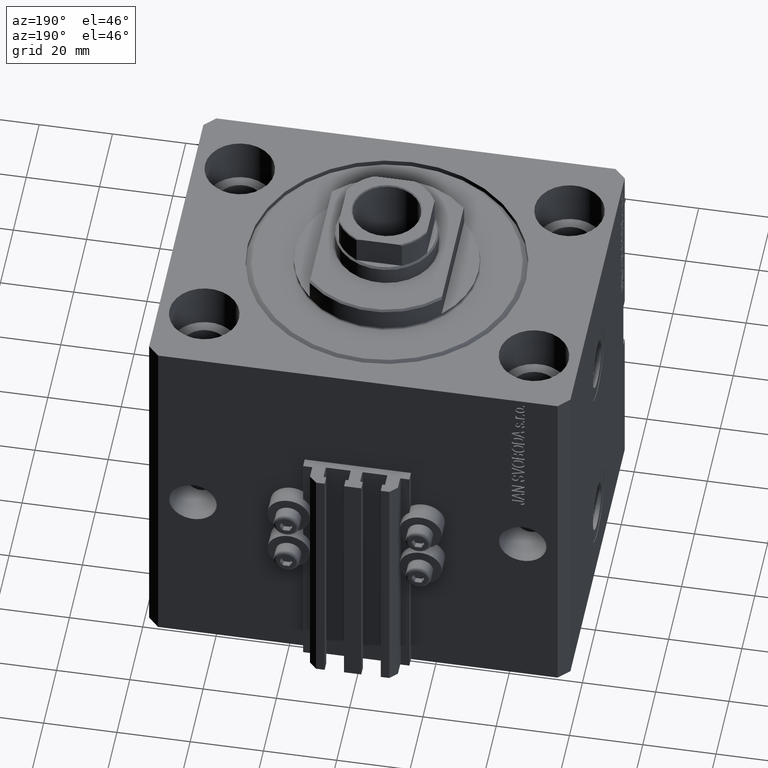
[diagram: clean part render]
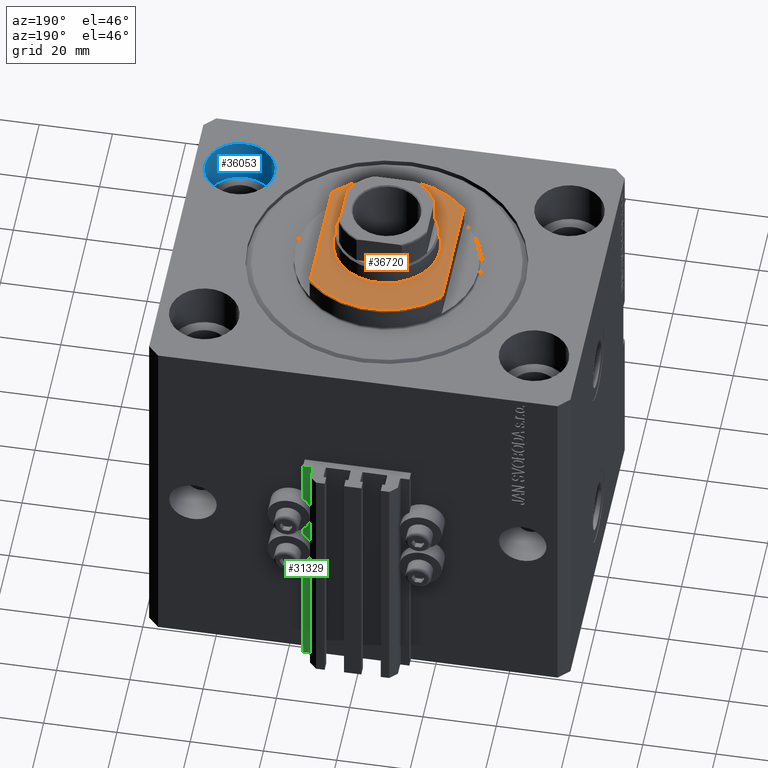
[diagram: same view with three faces highlighted in distinct colors, each labeled with its STEP entity id]
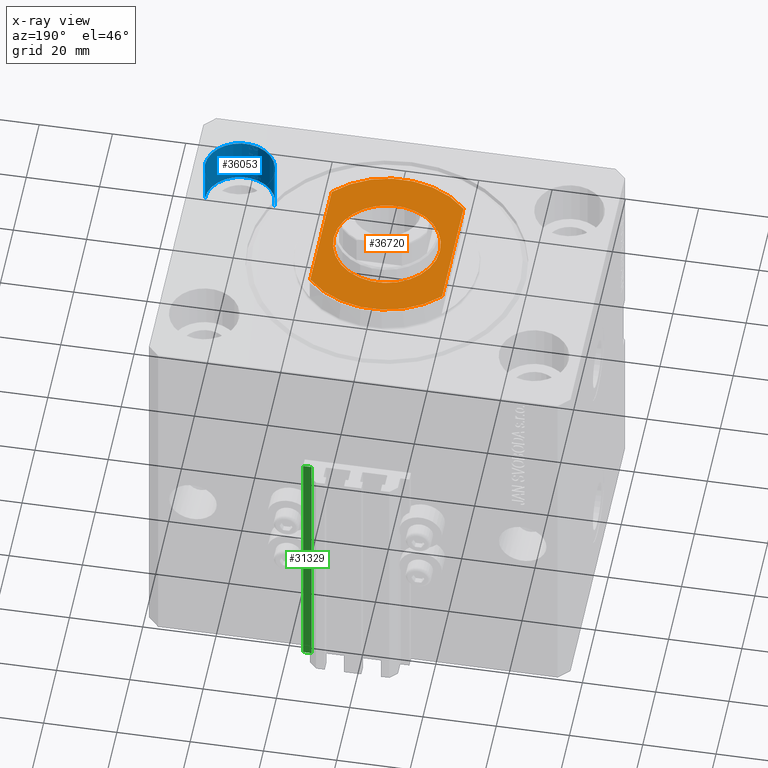
[diagram: x-ray of the same camera — body ghosted, the three highlighted faces saturated]
A machine part, auxiliary view with three faces highlighted in distinct colors.
The next image is the same camera in x-ray (body ghosted, the three faces saturated) — at least one of them is partly hidden behind the body in this view.
Their STEP definitions:

[orange] entity #36720 — the highlighted planar face has unit normal (0, 0, 1).
#127 = AXIS2_PLACEMENT_3D ( 'NONE', #952, #12392, #34790 ) ;
#952 = CARTESIAN_POINT ( 'NONE',  ( 0.000000000000000000, 0.000000000000000000, -7.000000000000000000 ) ) ;
#1234 = CARTESIAN_POINT ( 'NONE',  ( 18.00000000000000000, 16.62077013859462227, -7.000000000000000000 ) ) ;
#1754 = CARTESIAN_POINT ( 'NONE',  ( 0.000000000000000000, 0.000000000000000000, -7.000000000000000000 ) ) ;
#2191 = DIRECTION ( 'NONE',  ( 0.000000000000000000, 0.000000000000000000, -1.000000000000000000 ) ) ;
#2526 = EDGE_CURVE ( 'NONE', #11873, #15084, #2571, .T. ) ;
#2537 = CARTESIAN_POINT ( 'NONE',  ( 14.50000000000001243, 1.775737858763663987E-15, -7.000000000000000000 ) ) ;
#2571 = CIRCLE ( 'NONE', #7323, 14.50000000000001421 ) ;
#4262 = DIRECTION ( 'NONE',  ( -0.000000000000000000, -1.000000000000000000, -0.000000000000000000 ) ) ;
#6861 = VERTEX_POINT ( 'NONE', #23303 ) ;
#7021 = LINE ( 'NONE', #22189, #8323 ) ;
#7323 = AXIS2_PLACEMENT_3D ( 'NONE', #42429, #12587, #8369 ) ;
#8323 = VECTOR ( 'NONE', #4262, 1000.000000000000000 ) ;
#8369 = DIRECTION ( 'NONE',  ( -1.000000000000000000, 0.000000000000000000, 0.000000000000000000 ) ) ;
#9617 = CARTESIAN_POINT ( 'NONE',  ( 18.00000000000000000, -41.24318125460256113, -7.000000000000000000 ) ) ;
#11873 = VERTEX_POINT ( 'NONE', #33696 ) ;
#11934 = VERTEX_POINT ( 'NONE', #40650 ) ;
#12392 = DIRECTION ( 'NONE',  ( 0.000000000000000000, 0.000000000000000000, -1.000000000000000000 ) ) ;
#12587 = DIRECTION ( 'NONE',  ( -0.000000000000000000, -0.000000000000000000, 1.000000000000000000 ) ) ;
#14108 = DIRECTION ( 'NONE',  ( 0.000000000000000000, -1.000000000000000000, -0.000000000000000000 ) ) ;
#14260 = VERTEX_POINT ( 'NONE', #15843 ) ;
#15084 = VERTEX_POINT ( 'NONE', #2537 ) ;
#15632 = CIRCLE ( 'NONE', #23591, 14.50000000000001421 ) ;
#15843 = CARTESIAN_POINT ( 'NONE',  ( 18.00000000000000000, -16.62077013859462227, -7.000000000000000000 ) ) ;
#16937 = CARTESIAN_POINT ( 'NONE',  ( 0.000000000000000000, 0.000000000000000000, -7.000000000000000000 ) ) ;
#17109 = DIRECTION ( 'NONE',  ( -1.000000000000000000, 0.000000000000000000, 0.000000000000000000 ) ) ;
#17111 = VERTEX_POINT ( 'NONE', #1234 ) ;
#19473 = ORIENTED_EDGE ( 'NONE', *, *, #37351, .T. ) ;
#20124 = VECTOR ( 'NONE', #14108, 1000.000000000000000 ) ;
#20271 = EDGE_CURVE ( 'NONE', #11934, #6861, #7021, .T. ) ;
#20608 = EDGE_CURVE ( 'NONE', #11934, #17111, #21905, .T. ) ;
#20922 = DIRECTION ( 'NONE',  ( -1.000000000000000000, 0.000000000000000000, 0.000000000000000000 ) ) ;
#21905 = CIRCLE ( 'NONE', #45711, 24.49999999999996803 ) ;
#22189 = CARTESIAN_POINT ( 'NONE',  ( -18.00000000000000000, -41.24318125460256113, -7.000000000000000000 ) ) ;
#22396 = CIRCLE ( 'NONE', #36715, 24.49999999999996803 ) ;
#23303 = CARTESIAN_POINT ( 'NONE',  ( -18.00000000000000000, -16.62077013859462227, -7.000000000000000000 ) ) ;
#23591 = AXIS2_PLACEMENT_3D ( 'NONE', #16937, #43551, #20922 ) ;
#24087 = EDGE_LOOP ( 'NONE', ( #47809, #30721 ) ) ;
#24268 = EDGE_CURVE ( 'NONE', #15084, #11873, #15632, .T. ) ;
#24555 = LINE ( 'NONE', #9617, #20124 ) ;
#25802 = ORIENTED_EDGE ( 'NONE', *, *, #20608, .T. ) ;
#28376 = DIRECTION ( 'NONE',  ( 0.000000000000000000, 0.000000000000000000, -1.000000000000000000 ) ) ;
#30507 = ORIENTED_EDGE ( 'NONE', *, *, #43667, .T. ) ;
#30554 = FACE_OUTER_BOUND ( 'NONE', #31568, .T. ) ;
#30721 = ORIENTED_EDGE ( 'NONE', *, *, #24268, .T. ) ;
#31046 = PLANE ( 'NONE',  #127 ) ;
#31568 = EDGE_LOOP ( 'NONE', ( #25802, #30507, #19473, #31958 ) ) ;
#31958 = ORIENTED_EDGE ( 'NONE', *, *, #20271, .F. ) ;
#33696 = CARTESIAN_POINT ( 'NONE',  ( -14.50000000000001243, 0.000000000000000000, -7.000000000000000000 ) ) ;
#34790 = DIRECTION ( 'NONE',  ( -1.000000000000000000, 0.000000000000000000, -0.000000000000000000 ) ) ;
#35034 = FACE_BOUND ( 'NONE', #24087, .T. ) ;
#36715 = AXIS2_PLACEMENT_3D ( 'NONE', #1754, #28376, #48024 ) ;
#36720 = ADVANCED_FACE ( 'NONE', ( #35034, #30554 ), #31046, .T. ) ;
#37351 = EDGE_CURVE ( 'NONE', #14260, #6861, #22396, .T. ) ;
#40650 = CARTESIAN_POINT ( 'NONE',  ( -18.00000000000000000, 16.62077013859462227, -7.000000000000000000 ) ) ;
#42429 = CARTESIAN_POINT ( 'NONE',  ( 0.000000000000000000, 0.000000000000000000, -7.000000000000000000 ) ) ;
#43475 = CARTESIAN_POINT ( 'NONE',  ( 0.000000000000000000, 0.000000000000000000, -7.000000000000000000 ) ) ;
#43551 = DIRECTION ( 'NONE',  ( -0.000000000000000000, -0.000000000000000000, 1.000000000000000000 ) ) ;
#43667 = EDGE_CURVE ( 'NONE', #17111, #14260, #24555, .T. ) ;
#45711 = AXIS2_PLACEMENT_3D ( 'NONE', #43475, #2191, #17109 ) ;
#47809 = ORIENTED_EDGE ( 'NONE', *, *, #2526, .T. ) ;
#48024 = DIRECTION ( 'NONE',  ( -1.000000000000000000, 0.000000000000000000, 0.000000000000000000 ) ) ;

[blue] entity #36053 — the highlighted cylindrical surface (edge-blend (fillet) strip) has radius 9.5 mm, axis along (0, 0, 1).
#2859 = DIRECTION ( 'NONE',  ( -0.000000000000000000, -0.000000000000000000, 1.000000000000000000 ) ) ;
#2923 = VERTEX_POINT ( 'NONE', #22439 ) ;
#3833 = FACE_OUTER_BOUND ( 'NONE', #44087, .T. ) ;
#6099 = CARTESIAN_POINT ( 'NONE',  ( 35.50000000000000000, -27.49999999999999645, 0.000000000000000000 ) ) ;
#6328 = ORIENTED_EDGE ( 'NONE', *, *, #35488, .F. ) ;
#6764 = DIRECTION ( 'NONE',  ( -0.000000000000000000, -0.000000000000000000, 1.000000000000000000 ) ) ;
#12377 = AXIS2_PLACEMENT_3D ( 'NONE', #47856, #25225, #40390 ) ;
#14407 = VERTEX_POINT ( 'NONE', #27292 ) ;
#15172 = CARTESIAN_POINT ( 'NONE',  ( 54.50000000000000000, -27.49999999999999645, -13.00000000000000000 ) ) ;
#15499 = CARTESIAN_POINT ( 'NONE',  ( 45.00000000000000000, -27.49999999999999645, -13.00000000000000000 ) ) ;
#17808 = EDGE_CURVE ( 'NONE', #2923, #21835, #44133, .T. ) ;
#17868 = EDGE_CURVE ( 'NONE', #45736, #14407, #23486, .T. ) ;
#18259 = LINE ( 'NONE', #36935, #37034 ) ;
#19134 = EDGE_CURVE ( 'NONE', #2923, #45736, #18259, .T. ) ;
#20999 = CARTESIAN_POINT ( 'NONE',  ( 45.00000000000000000, -27.49999999999999645, -13.00000000000000000 ) ) ;
#21247 = DIRECTION ( 'NONE',  ( 1.000000000000000000, 0.000000000000000000, 0.000000000000000000 ) ) ;
#21835 = VERTEX_POINT ( 'NONE', #38058 ) ;
#22439 = CARTESIAN_POINT ( 'NONE',  ( 35.50000000000000000, -27.49999999999999645, -13.00000000000000000 ) ) ;
#23486 = CIRCLE ( 'NONE', #12377, 9.500000000000001776 ) ;
#25225 = DIRECTION ( 'NONE',  ( 0.000000000000000000, 0.000000000000000000, 1.000000000000000000 ) ) ;
#27292 = CARTESIAN_POINT ( 'NONE',  ( 54.50000000000000000, -27.49999999999999645, 0.000000000000000000 ) ) ;
#27473 = AXIS2_PLACEMENT_3D ( 'NONE', #20999, #47607, #21247 ) ;
#35488 = EDGE_CURVE ( 'NONE', #21835, #14407, #48301, .T. ) ;
#36053 = ADVANCED_FACE ( 'NONE', ( #3833 ), #45357, .F. ) ;
#36935 = CARTESIAN_POINT ( 'NONE',  ( 35.50000000000000000, -27.49999999999999645, -13.00000000000000000 ) ) ;
#37034 = VECTOR ( 'NONE', #2859, 1000.000000000000000 ) ;
#37657 = DIRECTION ( 'NONE',  ( -0.000000000000000000, -0.000000000000000000, 1.000000000000000000 ) ) ;
#38058 = CARTESIAN_POINT ( 'NONE',  ( 54.50000000000000000, -27.49999999999999645, -13.00000000000000000 ) ) ;
#38662 = ORIENTED_EDGE ( 'NONE', *, *, #17868, .T. ) ;
#38958 = VECTOR ( 'NONE', #6764, 1000.000000000000000 ) ;
#40390 = DIRECTION ( 'NONE',  ( 1.000000000000000000, 0.000000000000000000, 0.000000000000000000 ) ) ;
#41142 = DIRECTION ( 'NONE',  ( 1.000000000000000000, 0.000000000000000000, 0.000000000000000000 ) ) ;
#41810 = ORIENTED_EDGE ( 'NONE', *, *, #19134, .T. ) ;
#42106 = AXIS2_PLACEMENT_3D ( 'NONE', #15499, #37657, #41142 ) ;
#44087 = EDGE_LOOP ( 'NONE', ( #47358, #41810, #38662, #6328 ) ) ;
#44133 = CIRCLE ( 'NONE', #27473, 9.500000000000001776 ) ;
#45357 = CYLINDRICAL_SURFACE ( 'NONE', #42106, 9.500000000000001776 ) ;
#45736 = VERTEX_POINT ( 'NONE', #6099 ) ;
#47358 = ORIENTED_EDGE ( 'NONE', *, *, #17808, .F. ) ;
#47607 = DIRECTION ( 'NONE',  ( 0.000000000000000000, 0.000000000000000000, 1.000000000000000000 ) ) ;
#47856 = CARTESIAN_POINT ( 'NONE',  ( 45.00000000000000000, -27.49999999999999645, 0.000000000000000000 ) ) ;
#48301 = LINE ( 'NONE', #15172, #38958 ) ;

[green] entity #31329 — the highlighted planar face has unit normal (0, 1, 0).
#818 = CARTESIAN_POINT ( 'NONE',  ( 12.20000000000000107, 47.50000000000001421, -105.0000000000000000 ) ) ;
#1321 = DIRECTION ( 'NONE',  ( 0.000000000000000000, 0.000000000000000000, 1.000000000000000000 ) ) ;
#2499 = VERTEX_POINT ( 'NONE', #9103 ) ;
#4111 = VECTOR ( 'NONE', #1321, 1000.000000000000000 ) ;
#4439 = EDGE_CURVE ( 'NONE', #36702, #43034, #34566, .T. ) ;
#5798 = VECTOR ( 'NONE', #11434, 1000.000000000000000 ) ;
#8041 = ORIENTED_EDGE ( 'NONE', *, *, #4439, .F. ) ;
#9103 = CARTESIAN_POINT ( 'NONE',  ( 14.49999999999999645, 47.50000000000001421, -105.0000000000000000 ) ) ;
#10321 = ORIENTED_EDGE ( 'NONE', *, *, #39460, .F. ) ;
#11434 = DIRECTION ( 'NONE',  ( -1.000000000000000000, 0.000000000000000000, 0.000000000000000000 ) ) ;
#14650 = DIRECTION ( 'NONE',  ( 0.000000000000000000, 0.000000000000000000, 1.000000000000000000 ) ) ;
#15374 = CARTESIAN_POINT ( 'NONE',  ( 14.49999999999999645, 47.50000000000001421, -33.00000000000000000 ) ) ;
#15650 = CARTESIAN_POINT ( 'NONE',  ( 14.49999999999999645, 47.50000000000001421, -33.00000000000000000 ) ) ;
#16572 = ORIENTED_EDGE ( 'NONE', *, *, #42438, .T. ) ;
#22357 = VECTOR ( 'NONE', #41948, 1000.000000000000000 ) ;
#22466 = VECTOR ( 'NONE', #49032, 1000.000000000000000 ) ;
#27274 = CARTESIAN_POINT ( 'NONE',  ( 14.49999999999999645, 47.50000000000001421, -105.0000000000000000 ) ) ;
#29155 = EDGE_LOOP ( 'NONE', ( #8041, #10321, #16572, #29697 ) ) ;
#29697 = ORIENTED_EDGE ( 'NONE', *, *, #36159, .T. ) ;
#30292 = VERTEX_POINT ( 'NONE', #40829 ) ;
#31329 = ADVANCED_FACE ( 'NONE', ( #33333 ), #40529, .T. ) ;
#31668 = LINE ( 'NONE', #818, #4111 ) ;
#33333 = FACE_OUTER_BOUND ( 'NONE', #29155, .T. ) ;
#34566 = LINE ( 'NONE', #15650, #5798 ) ;
#36159 = EDGE_CURVE ( 'NONE', #30292, #43034, #31668, .T. ) ;
#36702 = VERTEX_POINT ( 'NONE', #15374 ) ;
#37294 = CARTESIAN_POINT ( 'NONE',  ( 14.49999999999999645, 47.50000000000001421, -105.0000000000000000 ) ) ;
#38465 = LINE ( 'NONE', #27274, #22357 ) ;
#39460 = EDGE_CURVE ( 'NONE', #2499, #36702, #38465, .T. ) ;
#40529 = PLANE ( 'NONE',  #44476 ) ;
#40829 = CARTESIAN_POINT ( 'NONE',  ( 12.20000000000000107, 47.50000000000001421, -105.0000000000000000 ) ) ;
#40886 = CARTESIAN_POINT ( 'NONE',  ( 12.20000000000000107, 47.50000000000001421, -33.00000000000000000 ) ) ;
#41948 = DIRECTION ( 'NONE',  ( 0.000000000000000000, 0.000000000000000000, 1.000000000000000000 ) ) ;
#42438 = EDGE_CURVE ( 'NONE', #2499, #30292, #48783, .T. ) ;
#43034 = VERTEX_POINT ( 'NONE', #40886 ) ;
#44476 = AXIS2_PLACEMENT_3D ( 'NONE', #37294, #48989, #14650 ) ;
#45525 = CARTESIAN_POINT ( 'NONE',  ( 14.49999999999999645, 47.50000000000001421, -105.0000000000000000 ) ) ;
#48783 = LINE ( 'NONE', #45525, #22466 ) ;
#48989 = DIRECTION ( 'NONE',  ( 0.000000000000000000, 1.000000000000000000, -0.000000000000000000 ) ) ;
#49032 = DIRECTION ( 'NONE',  ( -1.000000000000000000, 0.000000000000000000, 0.000000000000000000 ) ) ;